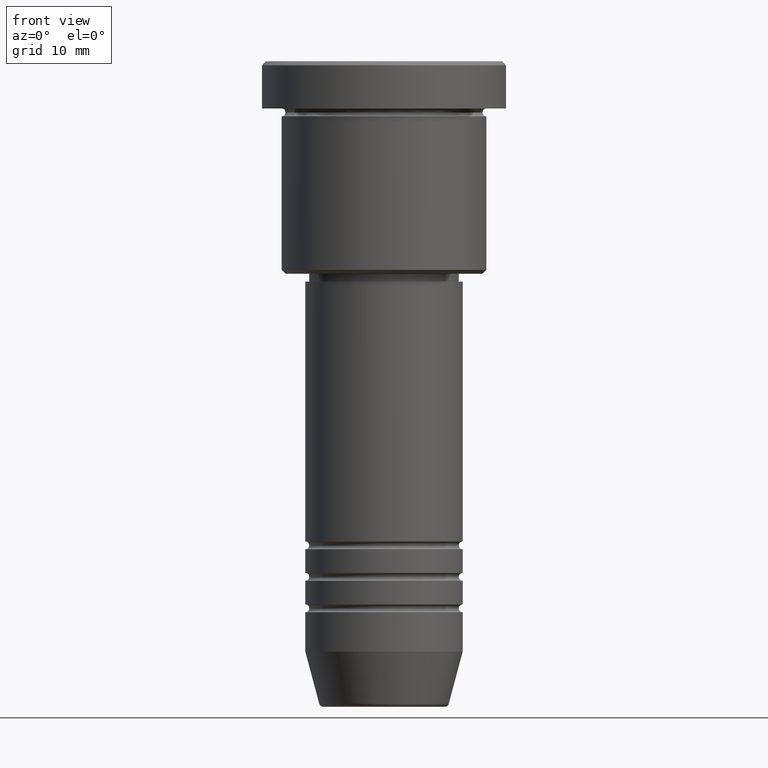
[diagram: clean part render]
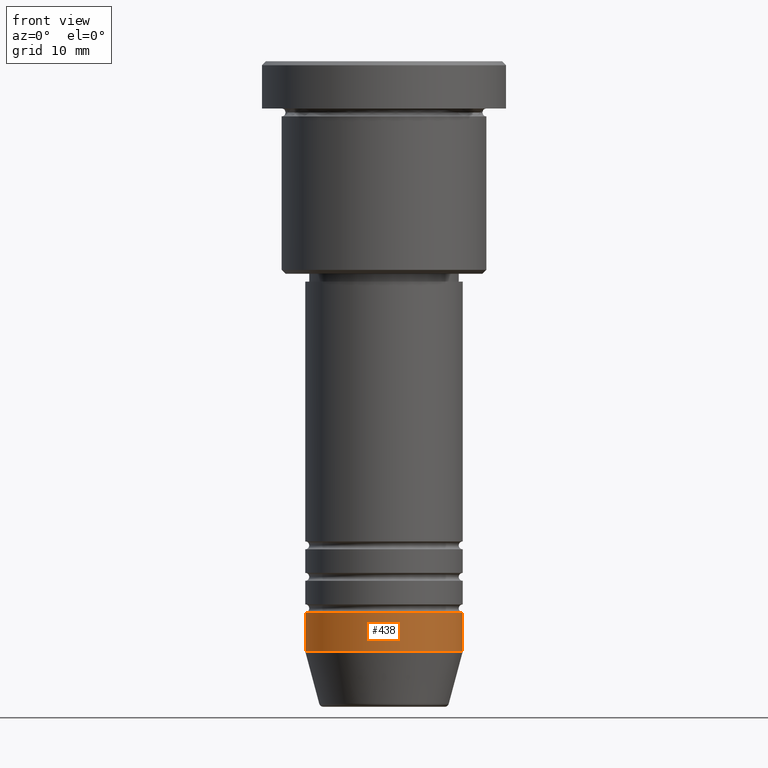
[diagram: same view with one face highlighted and labeled with its STEP entity id]
A machine part, front view. The second image highlights one B-rep face of the part: STEP entity #438.
In plain terms, the highlighted cylindrical surface (partial cylindrical patch) has radius 10 mm, axis along (-0, -0, 1).
Its self-contained STEP definition (entity closure, byte-faithful):
#12 = ORIENTED_EDGE ( 'NONE', *, *, #973, .T. ) ;
#25 = VERTEX_POINT ( 'NONE', #854 ) ;
#47 = CARTESIAN_POINT ( 'NONE',  ( -10.00000000000000000, 1.224646799147353256E-15, -75.00000000000000000 ) ) ;
#123 = VERTEX_POINT ( 'NONE', #341 ) ;
#131 = VECTOR ( 'NONE', #820, 1000.000000000000000 ) ;
#136 = DIRECTION ( 'NONE',  ( -0.000000000000000000, -0.000000000000000000, 1.000000000000000000 ) ) ;
#174 = CARTESIAN_POINT ( 'NONE',  ( 0.000000000000000000, 0.000000000000000000, -70.00000000000000000 ) ) ;
#175 = LINE ( 'NONE', #636, #131 ) ;
#177 = ORIENTED_EDGE ( 'NONE', *, *, #1098, .F. ) ;
#221 = CARTESIAN_POINT ( 'NONE',  ( -10.00000000000000000, 1.224646799147353256E-15, -70.00000000000000000 ) ) ;
#239 = DIRECTION ( 'NONE',  ( 1.000000000000000000, 0.000000000000000000, 0.000000000000000000 ) ) ;
#271 = CIRCLE ( 'NONE', #579, 10.00000000000000000 ) ;
#284 = DIRECTION ( 'NONE',  ( -0.000000000000000000, -0.000000000000000000, 1.000000000000000000 ) ) ;
#285 = AXIS2_PLACEMENT_3D ( 'NONE', #618, #1069, #239 ) ;
#319 = ORIENTED_EDGE ( 'NONE', *, *, #379, .T. ) ;
#330 = LINE ( 'NONE', #948, #537 ) ;
#341 = CARTESIAN_POINT ( 'NONE',  ( 10.00000000000000000, 0.000000000000000000, -70.00000000000000000 ) ) ;
#373 = DIRECTION ( 'NONE',  ( 1.000000000000000000, 0.000000000000000000, 0.000000000000000000 ) ) ;
#379 = EDGE_CURVE ( 'NONE', #25, #123, #330, .T. ) ;
#384 = VERTEX_POINT ( 'NONE', #221 ) ;
#401 = VERTEX_POINT ( 'NONE', #47 ) ;
#438 = ADVANCED_FACE ( 'NONE', ( #526 ), #706, .T. ) ;
#463 = DIRECTION ( 'NONE',  ( -0.000000000000000000, -0.000000000000000000, 1.000000000000000000 ) ) ;
#503 = AXIS2_PLACEMENT_3D ( 'NONE', #1103, #284, #373 ) ;
#514 = ORIENTED_EDGE ( 'NONE', *, *, #849, .F. ) ;
#526 = FACE_OUTER_BOUND ( 'NONE', #1131, .T. ) ;
#537 = VECTOR ( 'NONE', #136, 1000.000000000000000 ) ;
#579 = AXIS2_PLACEMENT_3D ( 'NONE', #174, #463, #999 ) ;
#618 = CARTESIAN_POINT ( 'NONE',  ( 0.000000000000000000, 0.000000000000000000, 0.000000000000000000 ) ) ;
#636 = CARTESIAN_POINT ( 'NONE',  ( -10.00000000000000000, 1.224646799147353256E-15, 0.000000000000000000 ) ) ;
#706 = CYLINDRICAL_SURFACE ( 'NONE', #285, 10.00000000000000000 ) ;
#820 = DIRECTION ( 'NONE',  ( -0.000000000000000000, -0.000000000000000000, 1.000000000000000000 ) ) ;
#849 = EDGE_CURVE ( 'NONE', #384, #123, #271, .T. ) ;
#854 = CARTESIAN_POINT ( 'NONE',  ( 10.00000000000000000, 0.000000000000000000, -75.00000000000000000 ) ) ;
#873 = CIRCLE ( 'NONE', #503, 10.00000000000000000 ) ;
#948 = CARTESIAN_POINT ( 'NONE',  ( 10.00000000000000000, 0.000000000000000000, 0.000000000000000000 ) ) ;
#973 = EDGE_CURVE ( 'NONE', #401, #25, #873, .T. ) ;
#999 = DIRECTION ( 'NONE',  ( 1.000000000000000000, 0.000000000000000000, 0.000000000000000000 ) ) ;
#1069 = DIRECTION ( 'NONE',  ( -0.000000000000000000, -0.000000000000000000, 1.000000000000000000 ) ) ;
#1098 = EDGE_CURVE ( 'NONE', #401, #384, #175, .T. ) ;
#1103 = CARTESIAN_POINT ( 'NONE',  ( 0.000000000000000000, 0.000000000000000000, -75.00000000000000000 ) ) ;
#1131 = EDGE_LOOP ( 'NONE', ( #177, #12, #319, #514 ) ) ;